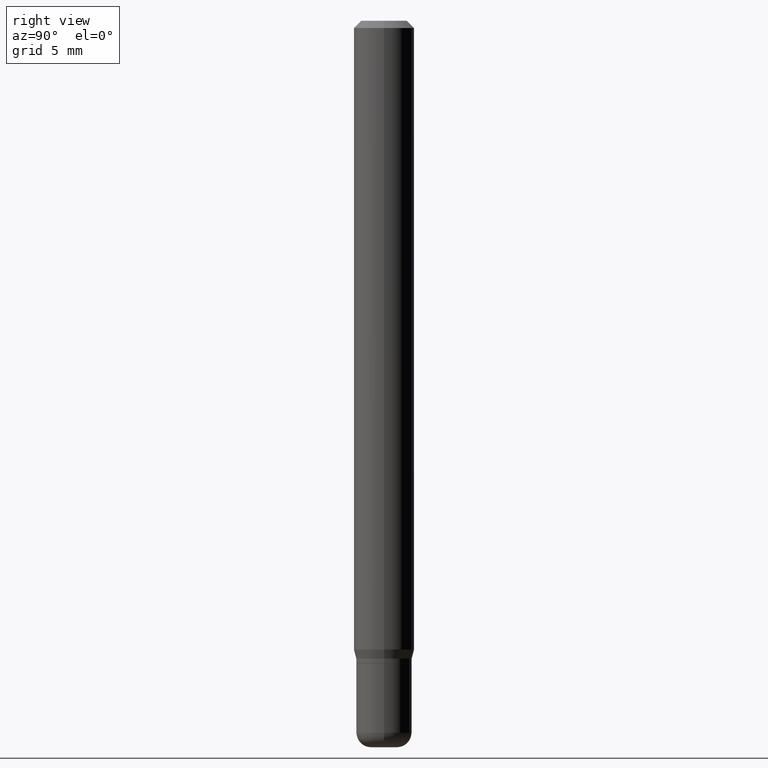
[diagram: clean part render]
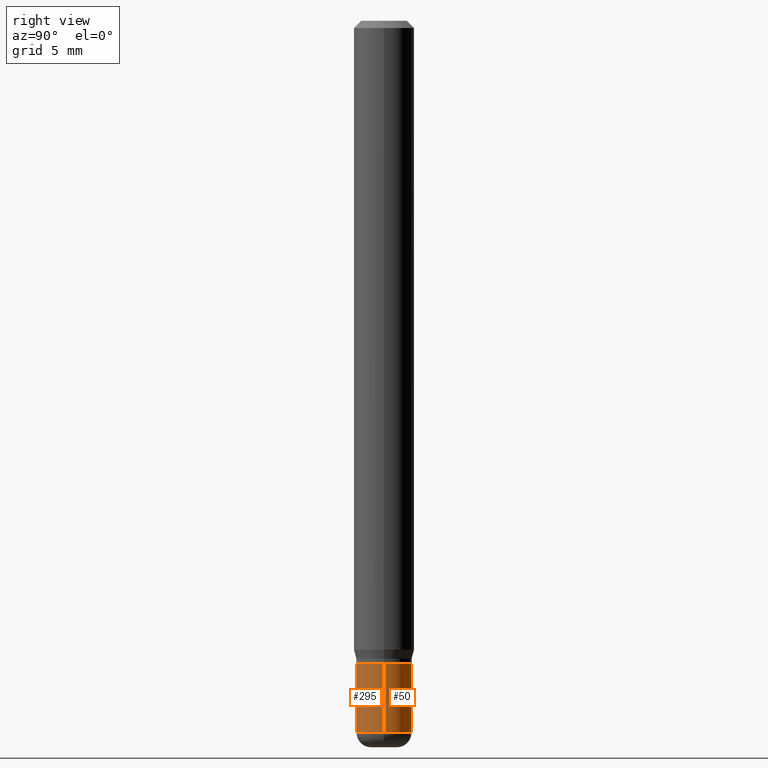
[diagram: same view with one multi-face feature highlighted, each face labeled with its STEP entity id]
A machine part, right view. The highlighted faces form ONE feature: a constant-radius fillet chain: 2 tangent blend faces with common blend radius 1.4605 mm. The faces share edges in the B-rep.
Their STEP definitions:
[1] entity #50 (Cylinder):
#7 = EDGE_LOOP ( 'NONE', ( #383, #484, #134, #10 ) ) ;
#10 = ORIENTED_EDGE ( 'NONE', *, *, #172, .F. ) ;
#29 = VERTEX_POINT ( 'NONE', #335 ) ;
#45 = CARTESIAN_POINT ( 'NONE',  ( -0.05750000000000005801, 4.085620730620580191E-16, -2.828387676896573865E-30 ) ) ;
#50 = ADVANCED_FACE ( 'NONE', ( #329 ), #234, .T. ) ;
#62 = CARTESIAN_POINT ( 'NONE',  ( 0.05750000000000005801, -4.015203539669607599E-16, 2.803801646082666094E-30 ) ) ;
#72 = DIRECTION ( 'NONE',  ( -2.445468806185136597E-29, 3.491481338843145583E-15, 1.000000000000000000 ) ) ;
#104 = VERTEX_POINT ( 'NONE', #456 ) ;
#134 = ORIENTED_EDGE ( 'NONE', *, *, #489, .F. ) ;
#172 = EDGE_CURVE ( 'NONE', #29, #104, #204, .T. ) ;
#175 = CIRCLE ( 'NONE', #472, 0.05750000000000012046 ) ;
#177 = EDGE_CURVE ( 'NONE', #29, #503, #175, .T. ) ;
#187 = DIRECTION ( 'NONE',  ( 1.000000000000000000, -6.982962677686266711E-15, 4.876176775795936353E-29 ) ) ;
#204 = LINE ( 'NONE', #62, #500 ) ;
#234 = CYLINDRICAL_SURFACE ( 'NONE', #347, 0.05750000000000005801 ) ;
#249 = VERTEX_POINT ( 'NONE', #446 ) ;
#257 = VECTOR ( 'NONE', #375, 39.37007874015748143 ) ;
#267 = AXIS2_PLACEMENT_3D ( 'NONE', #291, #288, #275 ) ;
#275 = DIRECTION ( 'NONE',  ( 1.000000000000000000, -6.982962677686273810E-15, 0.000000000000000000 ) ) ;
#288 = DIRECTION ( 'NONE',  ( -2.445468806185136597E-29, 3.491481338843145583E-15, 1.000000000000000000 ) ) ;
#291 = CARTESIAN_POINT ( 'NONE',  ( 3.245137105807676860E-29, -4.633195736644854276E-15, -1.327000000000000179 ) ) ;
#299 = EDGE_CURVE ( 'NONE', #503, #249, #337, .T. ) ;
#301 = CARTESIAN_POINT ( 'NONE',  ( -0.05750000000000012046, -4.474274579310080389E-15, -1.470000000000000195 ) ) ;
#317 = DIRECTION ( 'NONE',  ( -2.445468806185136597E-29, 3.491481338843145583E-15, 1.000000000000000000 ) ) ;
#329 = FACE_OUTER_BOUND ( 'NONE', #7, .T. ) ;
#335 = CARTESIAN_POINT ( 'NONE',  ( 0.05750000000000012046, -5.533997922066385616E-15, -1.470000000000000195 ) ) ;
#337 = LINE ( 'NONE', #45, #257 ) ;
#347 = AXIS2_PLACEMENT_3D ( 'NONE', #403, #72, #187 ) ;
#360 = CARTESIAN_POINT ( 'NONE',  ( 3.594839145092150820E-29, -5.132477568099424807E-15, -1.470000000000000195 ) ) ;
#375 = DIRECTION ( 'NONE',  ( -2.445468806185136877E-29, 3.491481338843145188E-15, 1.000000000000000000 ) ) ;
#383 = ORIENTED_EDGE ( 'NONE', *, *, #177, .T. ) ;
#403 = CARTESIAN_POINT ( 'NONE',  ( 0.000000000000000000, 0.000000000000000000, 0.000000000000000000 ) ) ;
#431 = CIRCLE ( 'NONE', #267, 0.05750000000000000250 ) ;
#441 = DIRECTION ( 'NONE',  ( 1.000000000000000000, -6.982962677686259611E-15, 0.000000000000000000 ) ) ;
#446 = CARTESIAN_POINT ( 'NONE',  ( -0.05750000000000000250, -4.474274579310081177E-15, -1.327000000000000179 ) ) ;
#456 = CARTESIAN_POINT ( 'NONE',  ( 0.05750000000000000250, -5.034716090611815085E-15, -1.327000000000000179 ) ) ;
#472 = AXIS2_PLACEMENT_3D ( 'NONE', #360, #317, #441 ) ;
#484 = ORIENTED_EDGE ( 'NONE', *, *, #299, .T. ) ;
#489 = EDGE_CURVE ( 'NONE', #104, #249, #431, .T. ) ;
#500 = VECTOR ( 'NONE', #518, 39.37007874015748143 ) ;
#503 = VERTEX_POINT ( 'NONE', #301 ) ;
#518 = DIRECTION ( 'NONE',  ( -2.445468806185136877E-29, 3.491481338843145188E-15, 1.000000000000000000 ) ) ;
[2] entity #295 (Cylinder):
#11 = AXIS2_PLACEMENT_3D ( 'NONE', #279, #102, #274 ) ;
#29 = VERTEX_POINT ( 'NONE', #335 ) ;
#43 = CARTESIAN_POINT ( 'NONE',  ( 0.000000000000000000, 0.000000000000000000, 0.000000000000000000 ) ) ;
#45 = CARTESIAN_POINT ( 'NONE',  ( -0.05750000000000005801, 4.085620730620580191E-16, -2.828387676896573865E-30 ) ) ;
#49 = CIRCLE ( 'NONE', #11, 0.05750000000000000250 ) ;
#62 = CARTESIAN_POINT ( 'NONE',  ( 0.05750000000000005801, -4.015203539669607599E-16, 2.803801646082666094E-30 ) ) ;
#66 = EDGE_LOOP ( 'NONE', ( #466, #107, #425, #463 ) ) ;
#73 = DIRECTION ( 'NONE',  ( -2.445468806185136597E-29, 3.491481338843145583E-15, 1.000000000000000000 ) ) ;
#75 = CIRCLE ( 'NONE', #180, 0.05750000000000012046 ) ;
#91 = EDGE_CURVE ( 'NONE', #249, #104, #49, .T. ) ;
#102 = DIRECTION ( 'NONE',  ( -2.445468806185136597E-29, 3.491481338843145583E-15, 1.000000000000000000 ) ) ;
#104 = VERTEX_POINT ( 'NONE', #456 ) ;
#107 = ORIENTED_EDGE ( 'NONE', *, *, #391, .T. ) ;
#172 = EDGE_CURVE ( 'NONE', #29, #104, #204, .T. ) ;
#176 = CARTESIAN_POINT ( 'NONE',  ( 3.594839145092150820E-29, -5.132477568099424807E-15, -1.470000000000000195 ) ) ;
#180 = AXIS2_PLACEMENT_3D ( 'NONE', #176, #462, #411 ) ;
#204 = LINE ( 'NONE', #62, #500 ) ;
#239 = DIRECTION ( 'NONE',  ( 1.000000000000000000, -6.982962677686266711E-15, 4.876176775795936353E-29 ) ) ;
#249 = VERTEX_POINT ( 'NONE', #446 ) ;
#257 = VECTOR ( 'NONE', #375, 39.37007874015748143 ) ;
#274 = DIRECTION ( 'NONE',  ( 1.000000000000000000, -6.982962677686273810E-15, 0.000000000000000000 ) ) ;
#279 = CARTESIAN_POINT ( 'NONE',  ( 3.245137105807676860E-29, -4.633195736644854276E-15, -1.327000000000000179 ) ) ;
#289 = CYLINDRICAL_SURFACE ( 'NONE', #318, 0.05750000000000005801 ) ;
#295 = ADVANCED_FACE ( 'NONE', ( #333 ), #289, .T. ) ;
#299 = EDGE_CURVE ( 'NONE', #503, #249, #337, .T. ) ;
#301 = CARTESIAN_POINT ( 'NONE',  ( -0.05750000000000012046, -4.474274579310080389E-15, -1.470000000000000195 ) ) ;
#318 = AXIS2_PLACEMENT_3D ( 'NONE', #43, #73, #239 ) ;
#333 = FACE_OUTER_BOUND ( 'NONE', #66, .T. ) ;
#335 = CARTESIAN_POINT ( 'NONE',  ( 0.05750000000000012046, -5.533997922066385616E-15, -1.470000000000000195 ) ) ;
#337 = LINE ( 'NONE', #45, #257 ) ;
#375 = DIRECTION ( 'NONE',  ( -2.445468806185136877E-29, 3.491481338843145188E-15, 1.000000000000000000 ) ) ;
#391 = EDGE_CURVE ( 'NONE', #503, #29, #75, .T. ) ;
#411 = DIRECTION ( 'NONE',  ( 1.000000000000000000, -6.982962677686259611E-15, 0.000000000000000000 ) ) ;
#425 = ORIENTED_EDGE ( 'NONE', *, *, #172, .T. ) ;
#446 = CARTESIAN_POINT ( 'NONE',  ( -0.05750000000000000250, -4.474274579310081177E-15, -1.327000000000000179 ) ) ;
#456 = CARTESIAN_POINT ( 'NONE',  ( 0.05750000000000000250, -5.034716090611815085E-15, -1.327000000000000179 ) ) ;
#462 = DIRECTION ( 'NONE',  ( -2.445468806185136597E-29, 3.491481338843145583E-15, 1.000000000000000000 ) ) ;
#463 = ORIENTED_EDGE ( 'NONE', *, *, #91, .F. ) ;
#466 = ORIENTED_EDGE ( 'NONE', *, *, #299, .F. ) ;
#500 = VECTOR ( 'NONE', #518, 39.37007874015748143 ) ;
#503 = VERTEX_POINT ( 'NONE', #301 ) ;
#518 = DIRECTION ( 'NONE',  ( -2.445468806185136877E-29, 3.491481338843145188E-15, 1.000000000000000000 ) ) ;